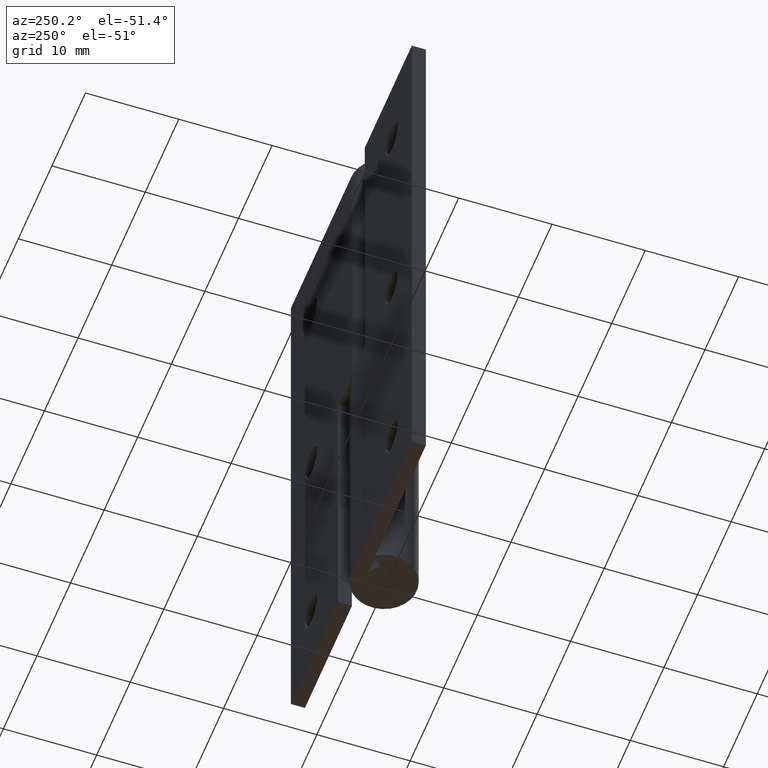
[diagram: clean part render]
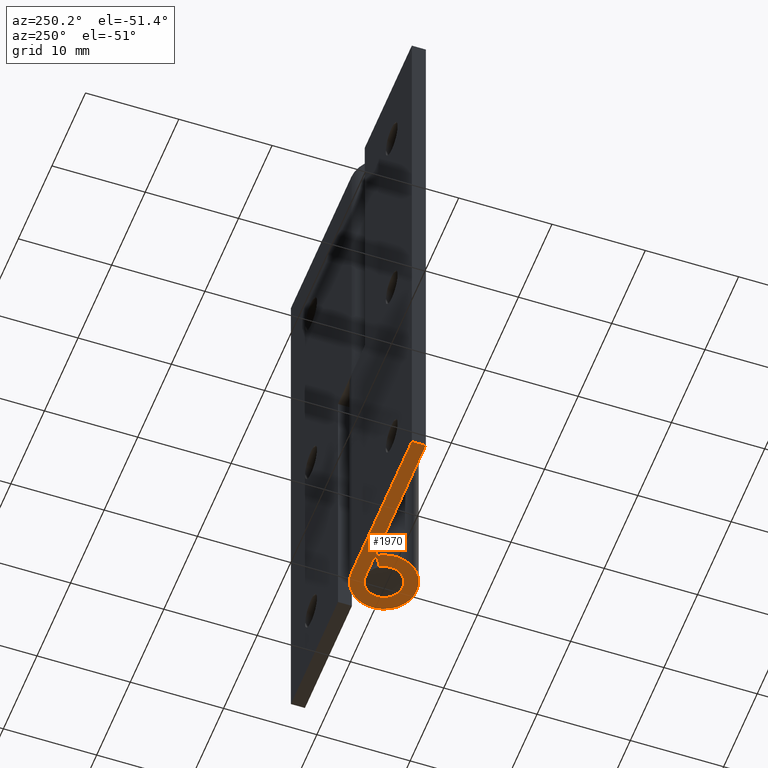
[diagram: same view with one face highlighted and labeled with its STEP entity id]
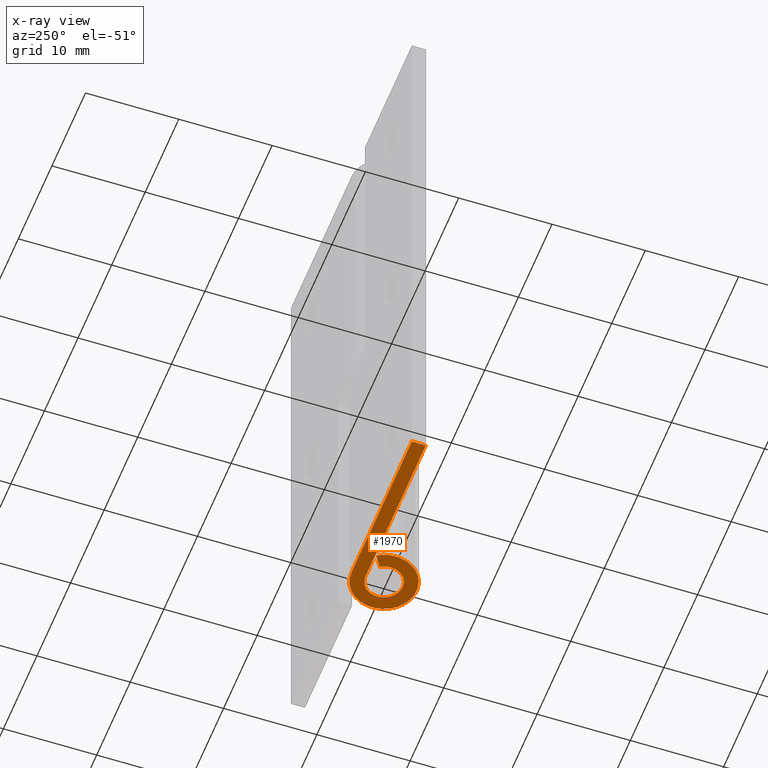
[diagram: x-ray of the same camera — body ghosted, the highlighted face saturated]
A machine part, auxiliary view. The second image highlights one B-rep face of the part: STEP entity #1970.
The next image is the same camera in x-ray: the body ghosted, the highlighted face saturated — about 0% of this face is hidden behind the body in this view.
In plain terms, the highlighted face is a freeform B-spline surface patch.
Its self-contained STEP definition (entity closure, byte-faithful):
#1893=CARTESIAN_POINT('',(-19.073905122738910,-3.847980805859946,0.0));
#1894=CARTESIAN_POINT('',(4.573508590480676,-3.847980805859946,0.0));
#1895=CARTESIAN_POINT('',(-19.073905122738910,3.849570765061794,0.0));
#1896=CARTESIAN_POINT('',(4.573508590480676,3.849570765061794,0.0));
#1897=B_SPLINE_SURFACE_WITH_KNOTS('',1,1,((#1893,#1895),(#1894,#1896)),.UNSPECIFIED.,.F.,.F.,.U.,(2,2),(2,2),(0.0,23.647413713219589),(0.0,7.697551570921741),.UNSPECIFIED.);
#1898=CARTESIAN_POINT('',(-18.0,2.0,0.0));
#1899=VERTEX_POINT('',#1898);
#1900=CARTESIAN_POINT('',(-18.0,3.500000000000000,0.0));
#1901=VERTEX_POINT('',#1900);
#1902=CARTESIAN_POINT('',(-18.0,2.0,0.0));
#1903=CARTESIAN_POINT('',(-18.0,3.500000000000000,0.0));
#1904=QUASI_UNIFORM_CURVE('',1,(#1902,#1903),.UNSPECIFIED.,.F.,.U.);
#1905=EDGE_CURVE('',#1899,#1901,#1904,.T.);
#1906=ORIENTED_EDGE('',*,*,#1905,.T.);
#1907=CARTESIAN_POINT('',(0.0,3.500000000000000,0.0));
#1908=VERTEX_POINT('',#1907);
#1909=CARTESIAN_POINT('',(-18.0,3.500000000000000,0.0));
#1910=CARTESIAN_POINT('',(0.0,3.500000000000000,0.0));
#1911=QUASI_UNIFORM_CURVE('',1,(#1909,#1910),.UNSPECIFIED.,.F.,.U.);
#1912=EDGE_CURVE('',#1901,#1908,#1911,.T.);
#1913=ORIENTED_EDGE('',*,*,#1912,.T.);
#1914=CARTESIAN_POINT('',(-2.939387691339815,1.900000000000000,0.0));
#1915=VERTEX_POINT('',#1914);
#1916=CARTESIAN_POINT('',(0.0,3.500000000000000,0.0));
#1917=CARTESIAN_POINT('',(2.720733304442131,3.500000000000000,0.0));
#1918=CARTESIAN_POINT('',(3.391850402380503,0.863337041873692,0.0));
#1919=CARTESIAN_POINT('',(4.062967500318877,-1.773325916252620,0.0));
#1920=CARTESIAN_POINT('',(1.673320053068154,-3.074085229787878,0.0));
#1921=CARTESIAN_POINT('',(-0.716327394182569,-4.374844543323138,0.0));
#1922=CARTESIAN_POINT('',(-2.566342296824056,-2.379892269732356,0.0));
#1923=CARTESIAN_POINT('',(-4.416357199465543,-0.384939996141578,0.0));
#1924=CARTESIAN_POINT('',(-2.939387691339817,1.899999999999996,0.0));
#1932=(BOUNDED_CURVE()B_SPLINE_CURVE(2,(#1916,#1917,#1918,#1919,#1920,#1921,#1922,#1923,#1924),.UNSPECIFIED.,.F.,.U.)B_SPLINE_CURVE_WITH_KNOTS((3,2,2,2,3),(0.0,0.250000000000000,0.500000000000000,0.750000000000000,1.0),.UNSPECIFIED.)CURVE()GEOMETRIC_REPRESENTATION_ITEM()RATIONAL_B_SPLINE_CURVE((1.0,0.789514954338937,1.0,0.789514954338937,1.0,0.789514954338937,1.0,0.789514954338937,1.0))REPRESENTATION_ITEM(''));
#1933=EDGE_CURVE('',#1908,#1915,#1932,.T.);
#1934=ORIENTED_EDGE('',*,*,#1933,.T.);
#1935=CARTESIAN_POINT('',(-1.679650109337035,1.085714285714284,0.0));
#1936=VERTEX_POINT('',#1935);
#1937=CARTESIAN_POINT('',(-2.939387691339815,1.900000000000000,0.0));
#1938=CARTESIAN_POINT('',(-1.679650109337035,1.085714285714284,0.0));
#1939=QUASI_UNIFORM_CURVE('',1,(#1937,#1938),.UNSPECIFIED.,.F.,.U.);
#1940=EDGE_CURVE('',#1915,#1936,#1939,.T.);
#1941=ORIENTED_EDGE('',*,*,#1940,.T.);
#1942=CARTESIAN_POINT('',(1.224606E-016,2.0,0.0));
#1943=VERTEX_POINT('',#1942);
#1944=CARTESIAN_POINT('',(0.0,2.0,0.0));
#1945=CARTESIAN_POINT('',(1.554704745395504,2.000000000000000,0.0));
#1946=CARTESIAN_POINT('',(1.938200229931716,0.493335452499252,0.0));
#1947=CARTESIAN_POINT('',(2.321695714467929,-1.013329095001497,0.0));
#1948=CARTESIAN_POINT('',(0.956182887467516,-1.756620131307359,0.0));
#1949=CARTESIAN_POINT('',(-0.409329939532897,-2.499911167613221,0.0));
#1950=CARTESIAN_POINT('',(-1.466481312470889,-1.359938439847061,0.0));
#1951=CARTESIAN_POINT('',(-2.523632685408882,-0.219965712080901,0.0));
#1952=CARTESIAN_POINT('',(-1.679650109337038,1.085714285714283,0.0));
#1960=(BOUNDED_CURVE()B_SPLINE_CURVE(2,(#1944,#1945,#1946,#1947,#1948,#1949,#1950,#1951,#1952),.UNSPECIFIED.,.F.,.U.)B_SPLINE_CURVE_WITH_KNOTS((3,2,2,2,3),(0.0,0.250000000000000,0.500000000000000,0.750000000000000,1.0),.UNSPECIFIED.)CURVE()GEOMETRIC_REPRESENTATION_ITEM()RATIONAL_B_SPLINE_CURVE((1.0,0.789514954338937,1.0,0.789514954338937,1.0,0.789514954338937,1.0,0.789514954338937,1.0))REPRESENTATION_ITEM(''));
#1961=EDGE_CURVE('',#1943,#1936,#1960,.T.);
#1962=ORIENTED_EDGE('',*,*,#1961,.F.);
#1963=CARTESIAN_POINT('',(1.224606E-016,2.0,0.0));
#1964=CARTESIAN_POINT('',(-18.0,2.0,0.0));
#1965=QUASI_UNIFORM_CURVE('',1,(#1963,#1964),.UNSPECIFIED.,.F.,.U.);
#1966=EDGE_CURVE('',#1943,#1899,#1965,.T.);
#1967=ORIENTED_EDGE('',*,*,#1966,.T.);
#1968=EDGE_LOOP('',(#1906,#1913,#1934,#1941,#1962,#1967));
#1969=FACE_OUTER_BOUND('',#1968,.T.);
#1970=ADVANCED_FACE('',(#1969),#1897,.F.);